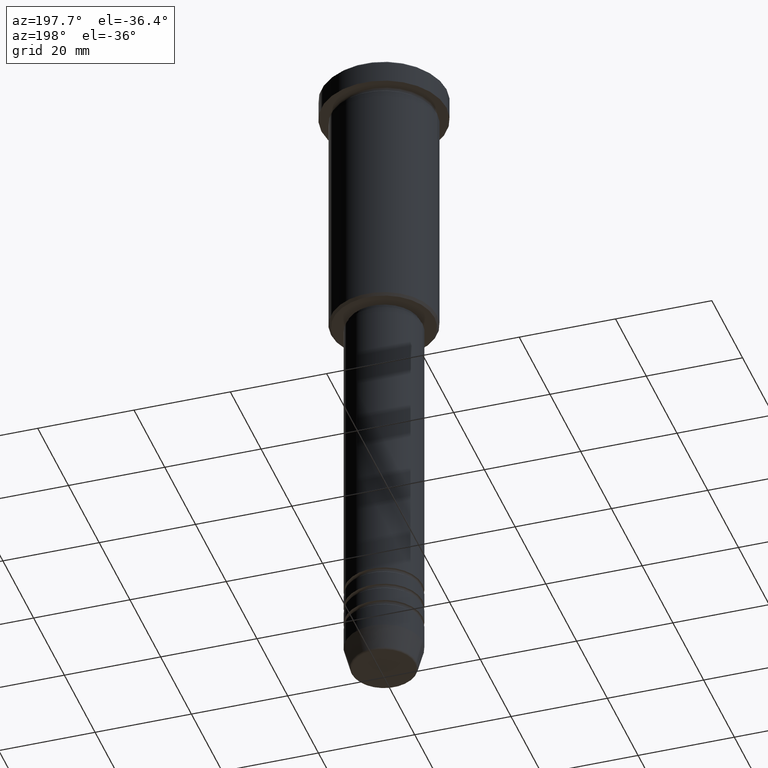
[diagram: clean part render]
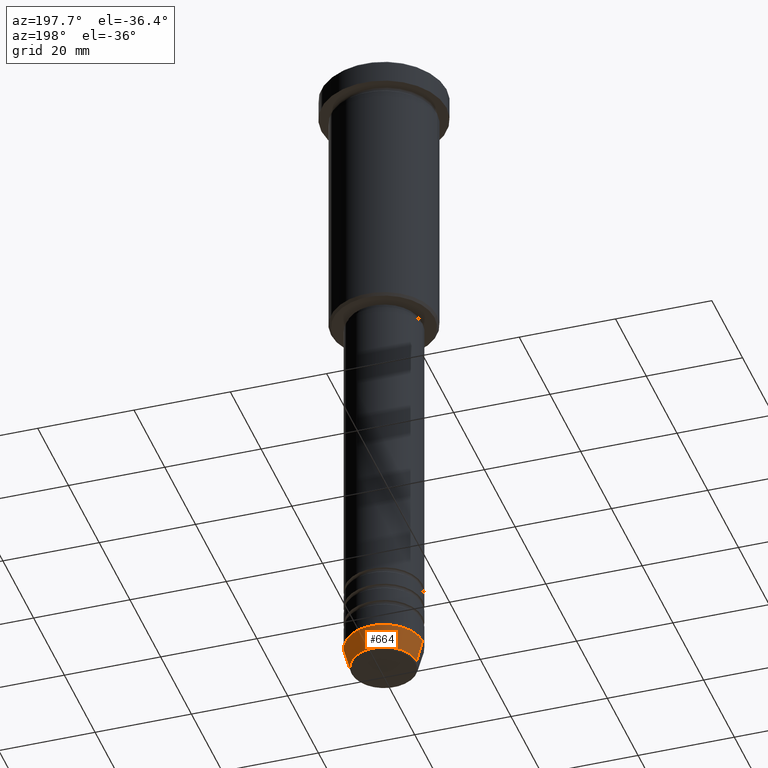
[diagram: same view with one face highlighted and labeled with its STEP entity id]
A machine part, auxiliary view. The second image highlights one B-rep face of the part: STEP entity #664.
In plain terms, the highlighted conical surface has half-angle 15 deg.
Its self-contained STEP definition (entity closure, byte-faithful):
#16 = EDGE_CURVE ( 'NONE', #404, #816, #762, .T. ) ;
#22 = CARTESIAN_POINT ( 'NONE',  ( -8.000000000000000000, 9.797174393178825657E-16, -135.0000000000000000 ) ) ;
#27 = CARTESIAN_POINT ( 'NONE',  ( -6.759553456999436882, 9.037619948979304241E-16, -139.6294095225512706 ) ) ;
#28 = VERTEX_POINT ( 'NONE', #276 ) ;
#73 = CARTESIAN_POINT ( 'NONE',  ( 0.000000000000000000, 0.000000000000000000, -139.6294095225512706 ) ) ;
#79 = EDGE_CURVE ( 'NONE', #28, #1093, #237, .T. ) ;
#189 = AXIS2_PLACEMENT_3D ( 'NONE', #689, #966, #246 ) ;
#221 = ORIENTED_EDGE ( 'NONE', *, *, #79, .F. ) ;
#237 = CIRCLE ( 'NONE', #901, 8.000000000000000000 ) ;
#246 = DIRECTION ( 'NONE',  ( 1.000000000000000000, 0.000000000000000000, 0.000000000000000000 ) ) ;
#276 = CARTESIAN_POINT ( 'NONE',  ( 8.000000000000000000, 0.000000000000000000, -135.0000000000000000 ) ) ;
#340 = ORIENTED_EDGE ( 'NONE', *, *, #16, .T. ) ;
#356 = CARTESIAN_POINT ( 'NONE',  ( -8.000000000000000000, 9.797174393178825657E-16, -135.0000000000000000 ) ) ;
#404 = VERTEX_POINT ( 'NONE', #1099 ) ;
#414 = AXIS2_PLACEMENT_3D ( 'NONE', #73, #805, #1086 ) ;
#465 = DIRECTION ( 'NONE',  ( 1.000000000000000000, 0.000000000000000000, 0.000000000000000000 ) ) ;
#521 = CARTESIAN_POINT ( 'NONE',  ( 8.000000000000000000, 0.000000000000000000, -135.0000000000000000 ) ) ;
#564 = ORIENTED_EDGE ( 'NONE', *, *, #965, .T. ) ;
#571 = LINE ( 'NONE', #22, #603 ) ;
#582 = EDGE_LOOP ( 'NONE', ( #340, #564, #221, #808 ) ) ;
#603 = VECTOR ( 'NONE', #1049, 1000.000000000000114 ) ;
#645 = EDGE_CURVE ( 'NONE', #404, #28, #980, .T. ) ;
#652 = DIRECTION ( 'NONE',  ( -0.000000000000000000, -0.000000000000000000, 1.000000000000000000 ) ) ;
#664 = ADVANCED_FACE ( 'NONE', ( #1143 ), #759, .T. ) ;
#689 = CARTESIAN_POINT ( 'NONE',  ( 0.000000000000000000, 0.000000000000000000, -135.0000000000000000 ) ) ;
#737 = CARTESIAN_POINT ( 'NONE',  ( 0.000000000000000000, 0.000000000000000000, -135.0000000000000000 ) ) ;
#759 = CONICAL_SURFACE ( 'NONE', #189, 8.000000000000000000, 0.2617993877991502405 ) ;
#762 = CIRCLE ( 'NONE', #414, 6.759553456999436882 ) ;
#805 = DIRECTION ( 'NONE',  ( -0.000000000000000000, -0.000000000000000000, 1.000000000000000000 ) ) ;
#808 = ORIENTED_EDGE ( 'NONE', *, *, #645, .F. ) ;
#816 = VERTEX_POINT ( 'NONE', #27 ) ;
#866 = DIRECTION ( 'NONE',  ( 0.2588190451025214611, 0.000000000000000000, 0.9659258262890679791 ) ) ;
#901 = AXIS2_PLACEMENT_3D ( 'NONE', #737, #652, #465 ) ;
#965 = EDGE_CURVE ( 'NONE', #816, #1093, #571, .T. ) ;
#966 = DIRECTION ( 'NONE',  ( -0.000000000000000000, -0.000000000000000000, 1.000000000000000000 ) ) ;
#980 = LINE ( 'NONE', #521, #991 ) ;
#991 = VECTOR ( 'NONE', #866, 1000.000000000000114 ) ;
#1049 = DIRECTION ( 'NONE',  ( -0.2588190451025214611, 3.169619151431774186E-17, 0.9659258262890679791 ) ) ;
#1086 = DIRECTION ( 'NONE',  ( 1.000000000000000000, 0.000000000000000000, 0.000000000000000000 ) ) ;
#1093 = VERTEX_POINT ( 'NONE', #356 ) ;
#1099 = CARTESIAN_POINT ( 'NONE',  ( 6.759553456999436882, 0.000000000000000000, -139.6294095225512706 ) ) ;
#1143 = FACE_OUTER_BOUND ( 'NONE', #582, .T. ) ;